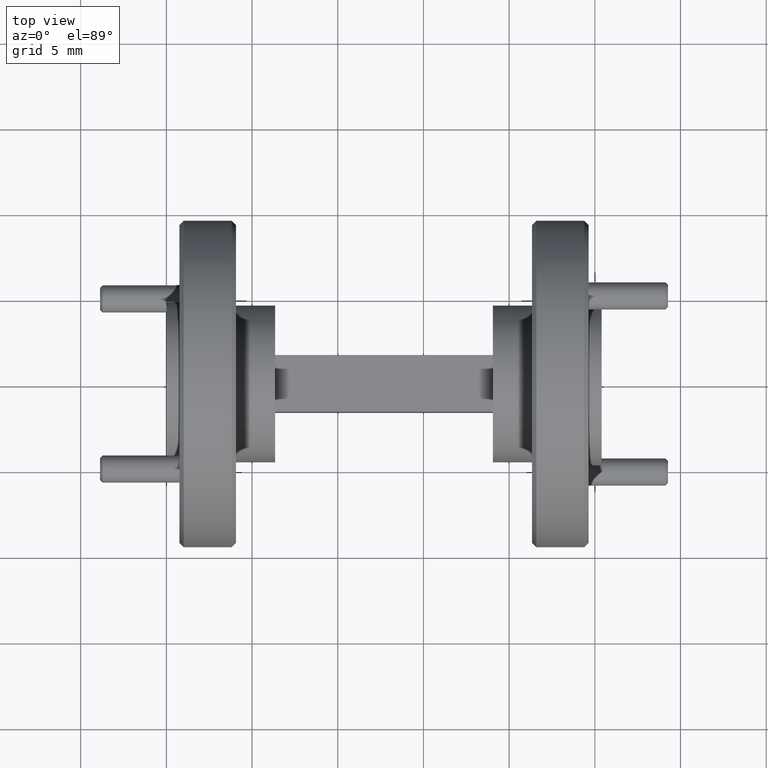
[diagram: clean part render]
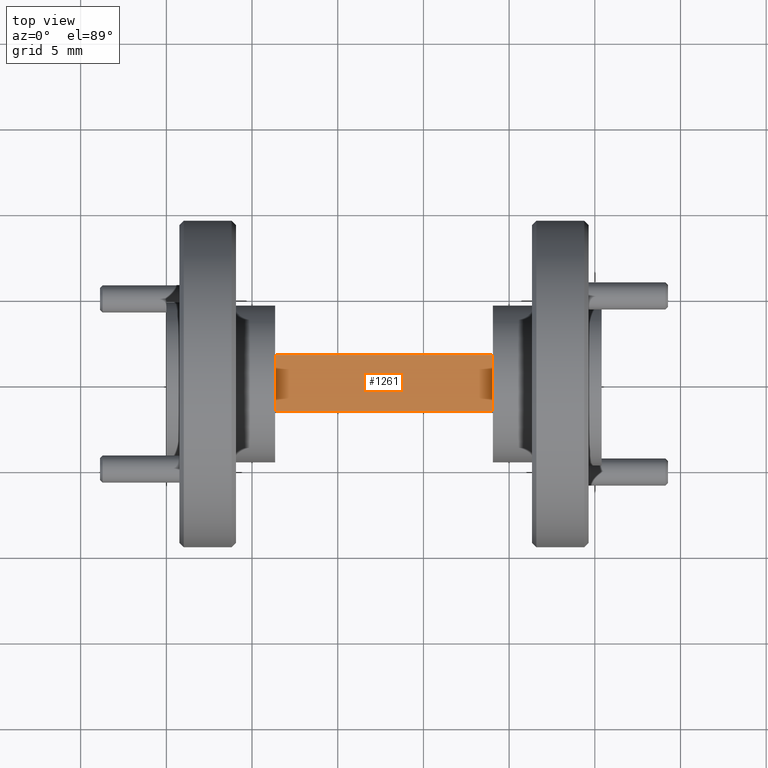
[diagram: same view with one face highlighted and labeled with its STEP entity id]
A machine part, top view. The second image highlights one B-rep face of the part: STEP entity #1261.
In plain terms, the highlighted planar face has unit normal (0, 0, -1).
Its self-contained STEP definition (entity closure, byte-faithful):
#57 = VERTEX_POINT ( 'NONE', #3273 ) ;
#64 = PLANE ( 'NONE',  #441 ) ;
#78 = DIRECTION ( 'NONE',  ( -1.000000000000000000, 0.0000000000000000000, -0.0000000000000000000 ) ) ;
#97 = DIRECTION ( 'NONE',  ( -1.000000000000000000, -2.390366994456230600E-016, 0.0000000000000000000 ) ) ;
#98 = LINE ( 'NONE', #552, #1806 ) ;
#441 = AXIS2_PLACEMENT_3D ( 'NONE', #2394, #1053, #78 ) ;
#552 = CARTESIAN_POINT ( 'NONE',  ( 0.2499999999999999700, -0.06499999999999991900, 0.08999999999999999700 ) ) ;
#636 = VECTOR ( 'NONE', #1250, 39.37007874015748100 ) ;
#754 = EDGE_CURVE ( 'NONE', #2762, #57, #1093, .T. ) ;
#766 = CARTESIAN_POINT ( 'NONE',  ( 0.7500000000000001100, 0.06500000000000018300, 0.08999999999999999700 ) ) ;
#789 = LINE ( 'NONE', #2931, #3574 ) ;
#924 = ORIENTED_EDGE ( 'NONE', *, *, #3806, .T. ) ;
#1038 = FACE_OUTER_BOUND ( 'NONE', #3936, .T. ) ;
#1053 = DIRECTION ( 'NONE',  ( 0.0000000000000000000, 0.0000000000000000000, -1.000000000000000000 ) ) ;
#1093 = LINE ( 'NONE', #4111, #3998 ) ;
#1250 = DIRECTION ( 'NONE',  ( -0.0000000000000000000, 1.000000000000000000, -0.0000000000000000000 ) ) ;
#1261 = ADVANCED_FACE ( 'NONE', ( #1038 ), #64, .F. ) ;
#1290 = DIRECTION ( 'NONE',  ( -0.0000000000000000000, 1.000000000000000000, -0.0000000000000000000 ) ) ;
#1555 = LINE ( 'NONE', #4166, #636 ) ;
#1574 = DIRECTION ( 'NONE',  ( 1.000000000000000000, 1.878145495644181100E-016, 0.0000000000000000000 ) ) ;
#1806 = VECTOR ( 'NONE', #1574, 39.37007874015748100 ) ;
#2394 = CARTESIAN_POINT ( 'NONE',  ( 0.2500000000000000600, -0.3749999999999996700, 0.08999999999999999700 ) ) ;
#2619 = EDGE_CURVE ( 'NONE', #2812, #57, #789, .T. ) ;
#2657 = CARTESIAN_POINT ( 'NONE',  ( 0.2500000000000000600, -0.06499999999999993300, 0.08999999999999999700 ) ) ;
#2762 = VERTEX_POINT ( 'NONE', #766 ) ;
#2812 = VERTEX_POINT ( 'NONE', #2657 ) ;
#2931 = CARTESIAN_POINT ( 'NONE',  ( 0.2500000000000000600, -0.3749999999999996700, 0.08999999999999999700 ) ) ;
#3273 = CARTESIAN_POINT ( 'NONE',  ( 0.2500000000000000600, 0.06500000000000012700, 0.08999999999999999700 ) ) ;
#3315 = VERTEX_POINT ( 'NONE', #4081 ) ;
#3467 = ORIENTED_EDGE ( 'NONE', *, *, #2619, .F. ) ;
#3568 = EDGE_CURVE ( 'NONE', #3315, #2762, #1555, .T. ) ;
#3574 = VECTOR ( 'NONE', #1290, 39.37007874015748100 ) ;
#3806 = EDGE_CURVE ( 'NONE', #2812, #3315, #98, .T. ) ;
#3936 = EDGE_LOOP ( 'NONE', ( #3467, #924, #4214, #4087 ) ) ;
#3998 = VECTOR ( 'NONE', #97, 39.37007874015748100 ) ;
#4081 = CARTESIAN_POINT ( 'NONE',  ( 0.7500000000000001100, -0.06499999999999983600, 0.08999999999999999700 ) ) ;
#4087 = ORIENTED_EDGE ( 'NONE', *, *, #754, .T. ) ;
#4111 = CARTESIAN_POINT ( 'NONE',  ( 0.2499999999999999200, 0.06500000000000005800, 0.08999999999999999700 ) ) ;
#4166 = CARTESIAN_POINT ( 'NONE',  ( 0.7500000000000001100, -0.3749999999999996700, 0.08999999999999999700 ) ) ;
#4214 = ORIENTED_EDGE ( 'NONE', *, *, #3568, .T. ) ;